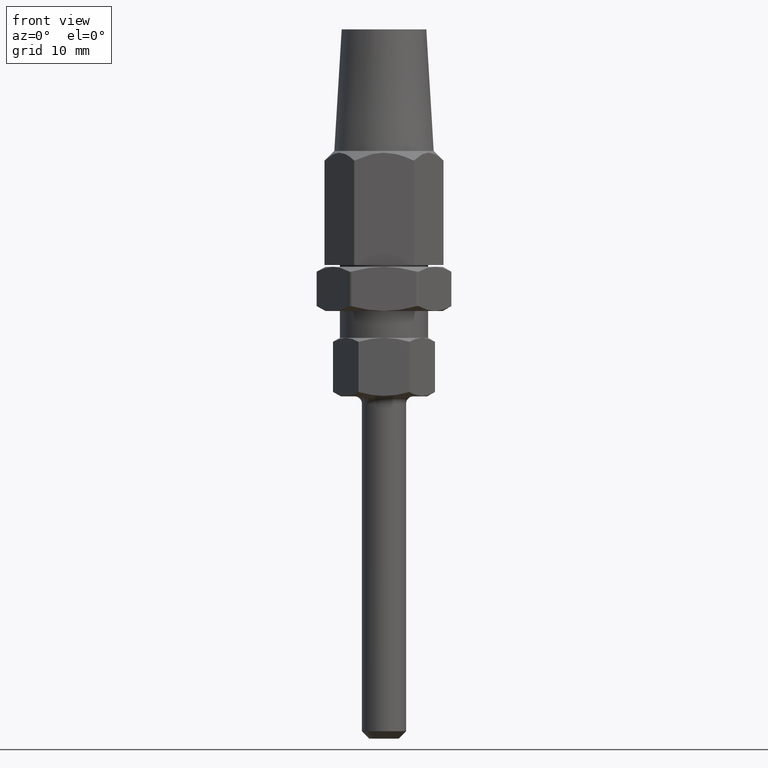
[diagram: clean part render]
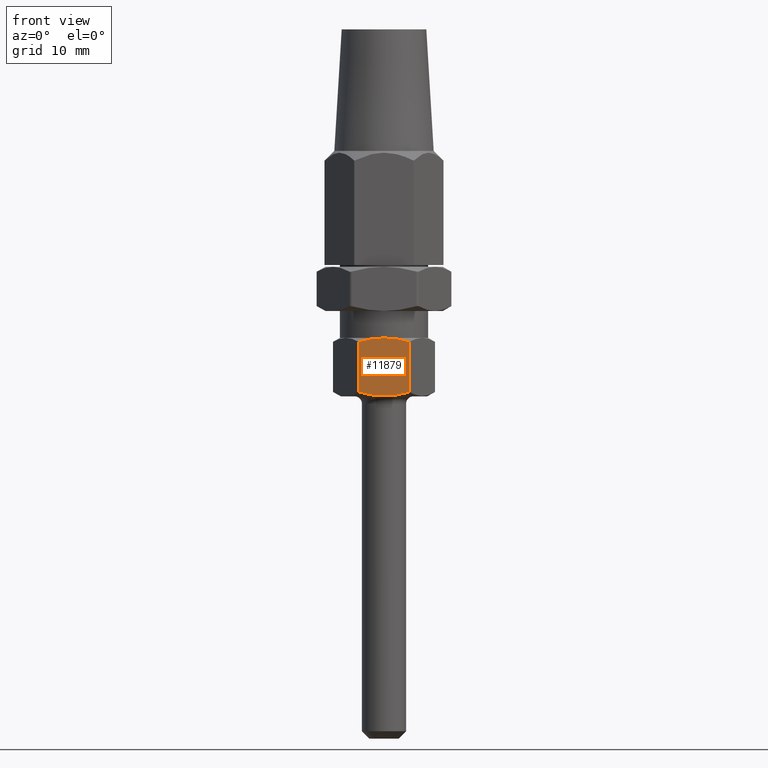
[diagram: same view with one face highlighted and labeled with its STEP entity id]
A machine part, front view. The second image highlights one B-rep face of the part: STEP entity #11879.
In plain terms, the highlighted planar face has unit normal (0, 1, 0).
Its self-contained STEP definition (entity closure, byte-faithful):
#334 = CARTESIAN_POINT ( 'NONE',  ( 3.464101615137755700, -6.000000000000000000, 3.406366588218799200 ) ) ;
#524 = CARTESIAN_POINT ( 'NONE',  ( 0.0000000000000000000, -6.000000000000001800, 3.942264973081036800 ) ) ;
#782 = EDGE_CURVE ( 'NONE', #17074, #17428, #14715, .T. ) ;
#1161 = VERTEX_POINT ( 'NONE', #8210 ) ;
#1210 = ORIENTED_EDGE ( 'NONE', *, *, #16360, .T. ) ;
#1213 = LINE ( 'NONE', #16252, #9995 ) ;
#1277 = EDGE_CURVE ( 'NONE', #12953, #1161, #1213, .T. ) ;
#1871 = CARTESIAN_POINT ( 'NONE',  ( 1.179794481799855100, -6.000000000000000900, 3.890503766522753500 ) ) ;
#1920 = PLANE ( 'NONE',  #17638 ) ;
#2067 = CARTESIAN_POINT ( 'NONE',  ( 0.5859762276249469400, -5.999999999999999100, -3.942264973081037700 ) ) ;
#2139 = CARTESIAN_POINT ( 'NONE',  ( 3.464101615137755700, -6.000000000000000000, -3.406366588218799200 ) ) ;
#2385 = ORIENTED_EDGE ( 'NONE', *, *, #782, .F. ) ;
#2564 = DIRECTION ( 'NONE',  ( -0.0000000000000000000, -0.0000000000000000000, -1.000000000000000000 ) ) ;
#3317 = CARTESIAN_POINT ( 'NONE',  ( -3.464101615137752200, -6.000000000000000000, 4.000000000000000000 ) ) ;
#4428 = CARTESIAN_POINT ( 'NONE',  ( 3.464101615137755700, -6.000000000000000000, 4.000000000000000000 ) ) ;
#4496 = VERTEX_POINT ( 'NONE', #17012 ) ;
#4588 = ORIENTED_EDGE ( 'NONE', *, *, #11590, .T. ) ;
#5635 = CARTESIAN_POINT ( 'NONE',  ( -2.900466568508061700, -6.000000000000000000, -3.569074011166999800 ) ) ;
#6453 = B_SPLINE_CURVE_WITH_KNOTS ( 'NONE', 3,
 ( #13052, #2067, #14426, #17203, #15888, #2139 ),
 .UNSPECIFIED., .F., .F.,
 ( 4, 2, 4 ),
 ( 0.009763346358568156900, 0.01151708049510476900, 0.01327081463164138000 ),
 .UNSPECIFIED. ) ;
#7306 = CARTESIAN_POINT ( 'NONE',  ( 0.0000000000000000000, -6.000000000000001800, 3.942264973081036800 ) ) ;
#8036 = CARTESIAN_POINT ( 'NONE',  ( -2.323491502816032100, -6.000000000000000900, 3.705446629456896200 ) ) ;
#8118 = B_SPLINE_CURVE_WITH_KNOTS ( 'NONE', 3,
 ( #334, #8757, #14178, #1871, #15569, #7306 ),
 .UNSPECIFIED., .F., .F.,
 ( 4, 2, 4 ),
 ( 0.01545369852428382300, 0.01720901233032762900, 0.01896432613637143200 ),
 .UNSPECIFIED. ) ;
#8150 = CARTESIAN_POINT ( 'NONE',  ( -0.5855989623369843900, -6.000000000000000900, -3.942264973081037700 ) ) ;
#8165 = CARTESIAN_POINT ( 'NONE',  ( -1.167178635753898700, -6.000000000000000900, 3.891914576520593400 ) ) ;
#8210 = CARTESIAN_POINT ( 'NONE',  ( -3.464101615137752200, -6.000000000000000000, -3.406366588218800100 ) ) ;
#8646 = CARTESIAN_POINT ( 'NONE',  ( 3.464101615137755700, -6.000000000000000000, -3.406366588218799200 ) ) ;
#8757 = CARTESIAN_POINT ( 'NONE',  ( 2.903927697161393900, -5.999999999999999100, 3.568074869387126000 ) ) ;
#9154 = CARTESIAN_POINT ( 'NONE',  ( 3.464101615137755700, -6.000000000000000000, 3.406366588218799200 ) ) ;
#9385 = CARTESIAN_POINT ( 'NONE',  ( -0.5855989623369829400, -5.999999999999999100, 3.942264973081038600 ) ) ;
#9398 = EDGE_CURVE ( 'NONE', #16245, #12953, #12662, .T. ) ;
#9425 = CARTESIAN_POINT ( 'NONE',  ( -3.464101615137752200, -6.000000000000000000, 3.406366588218800600 ) ) ;
#9840 = ORIENTED_EDGE ( 'NONE', *, *, #1277, .T. ) ;
#9995 = VECTOR ( 'NONE', #2564, 1000.000000000000000 ) ;
#10948 = CARTESIAN_POINT ( 'NONE',  ( -3.464101615137752200, -6.000000000000000000, 3.406366588218800600 ) ) ;
#11476 = FACE_OUTER_BOUND ( 'NONE', #14417, .T. ) ;
#11590 = EDGE_CURVE ( 'NONE', #17074, #16245, #8118, .T. ) ;
#11879 = ADVANCED_FACE ( 'NONE', ( #11476 ), #1920, .F. ) ;
#12141 = CARTESIAN_POINT ( 'NONE',  ( 0.0000000000000000000, -6.000000000000001800, 3.942264973081036800 ) ) ;
#12313 = CARTESIAN_POINT ( 'NONE',  ( -2.323491502816033900, -6.000000000000000900, -3.705446629456896200 ) ) ;
#12360 = CARTESIAN_POINT ( 'NONE',  ( -7.347880798660528000E-016, -6.000000000000000000, -3.942264973081038600 ) ) ;
#12386 = VECTOR ( 'NONE', #16736, 1000.000000000000000 ) ;
#12475 = ORIENTED_EDGE ( 'NONE', *, *, #15258, .T. ) ;
#12477 = DIRECTION ( 'NONE',  ( 0.0000000000000000000, 1.000000000000000000, 0.0000000000000000000 ) ) ;
#12662 = B_SPLINE_CURVE_WITH_KNOTS ( 'NONE', 3,
 ( #12141, #9385, #8165, #8036, #17611, #10948 ),
 .UNSPECIFIED., .F., .F.,
 ( 4, 2, 4 ),
 ( 0.01896432613637143200, 0.02071850983007059500, 0.02247269352376975900 ),
 .UNSPECIFIED. ) ;
#12903 = DIRECTION ( 'NONE',  ( 0.0000000000000000000, -0.0000000000000000000, 1.000000000000000000 ) ) ;
#12953 = VERTEX_POINT ( 'NONE', #9425 ) ;
#13052 = CARTESIAN_POINT ( 'NONE',  ( -7.347880798660528000E-016, -6.000000000000000000, -3.942264973081038600 ) ) ;
#14178 = CARTESIAN_POINT ( 'NONE',  ( 2.336497148171072800, -6.000000000000000900, 3.702711724570390700 ) ) ;
#14417 = EDGE_LOOP ( 'NONE', ( #9840, #12475, #1210, #2385, #4588, #15915 ) ) ;
#14426 = CARTESIAN_POINT ( 'NONE',  ( 1.179794481799857100, -6.000000000000000900, -3.890503766522754000 ) ) ;
#14715 = LINE ( 'NONE', #4428, #12386 ) ;
#14987 = CARTESIAN_POINT ( 'NONE',  ( -3.464101615137752200, -6.000000000000000000, -3.406366588218800100 ) ) ;
#15227 = B_SPLINE_CURVE_WITH_KNOTS ( 'NONE', 3,
 ( #14987, #5635, #12313, #16403, #8150, #12360 ),
 .UNSPECIFIED., .F., .F.,
 ( 4, 2, 4 ),
 ( 0.006258136276127397100, 0.008010741317347778300, 0.009763346358568156900 ),
 .UNSPECIFIED. ) ;
#15258 = EDGE_CURVE ( 'NONE', #1161, #4496, #15227, .T. ) ;
#15569 = CARTESIAN_POINT ( 'NONE',  ( 0.5859762276249478300, -6.000000000000000900, 3.942264973081038600 ) ) ;
#15888 = CARTESIAN_POINT ( 'NONE',  ( 2.903927697161395600, -6.000000000000000900, -3.568074869387126500 ) ) ;
#15915 = ORIENTED_EDGE ( 'NONE', *, *, #9398, .T. ) ;
#16245 = VERTEX_POINT ( 'NONE', #524 ) ;
#16252 = CARTESIAN_POINT ( 'NONE',  ( -3.464101615137752200, -6.000000000000000000, 4.000000000000000000 ) ) ;
#16360 = EDGE_CURVE ( 'NONE', #4496, #17428, #6453, .T. ) ;
#16403 = CARTESIAN_POINT ( 'NONE',  ( -1.167178635753900200, -6.000000000000000900, -3.891914576520594700 ) ) ;
#16736 = DIRECTION ( 'NONE',  ( -0.0000000000000000000, -0.0000000000000000000, -1.000000000000000000 ) ) ;
#17012 = CARTESIAN_POINT ( 'NONE',  ( -7.347880798660528000E-016, -6.000000000000000000, -3.942264973081038600 ) ) ;
#17074 = VERTEX_POINT ( 'NONE', #9154 ) ;
#17203 = CARTESIAN_POINT ( 'NONE',  ( 2.336497148171075500, -6.000000000000000900, -3.702711724570389300 ) ) ;
#17428 = VERTEX_POINT ( 'NONE', #8646 ) ;
#17611 = CARTESIAN_POINT ( 'NONE',  ( -2.900466568508060800, -6.000000000000000900, 3.569074011166998100 ) ) ;
#17638 = AXIS2_PLACEMENT_3D ( 'NONE', #3317, #12477, #12903 ) ;